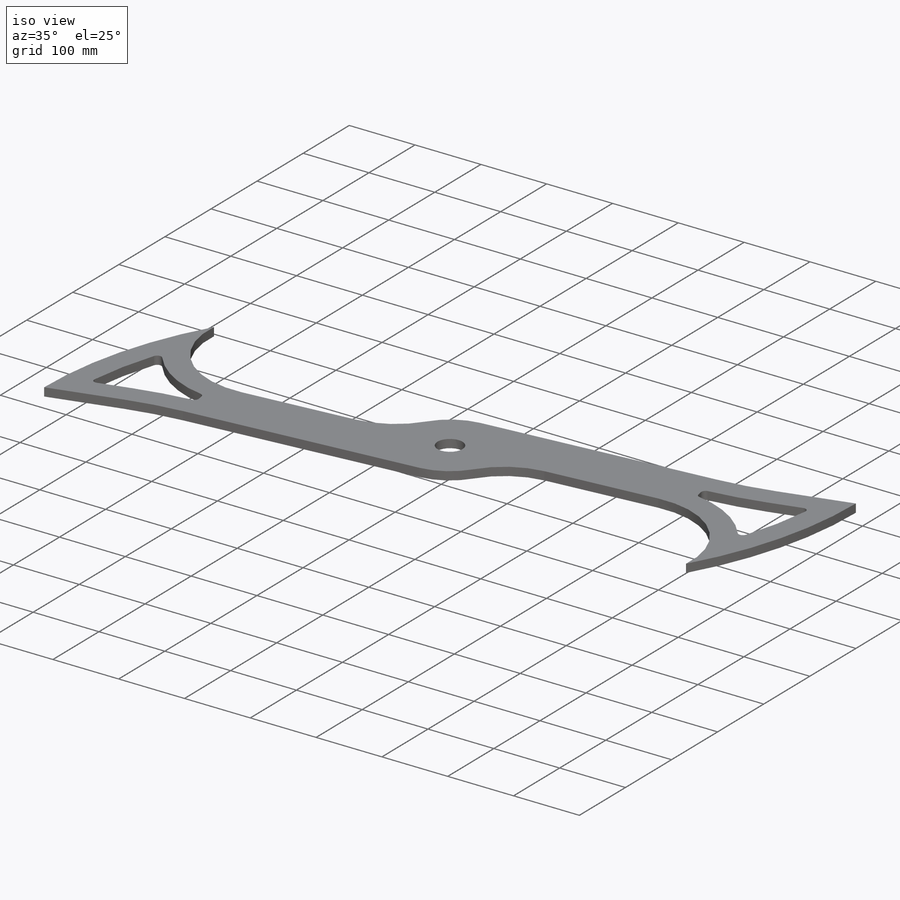
[diagram: iso view]
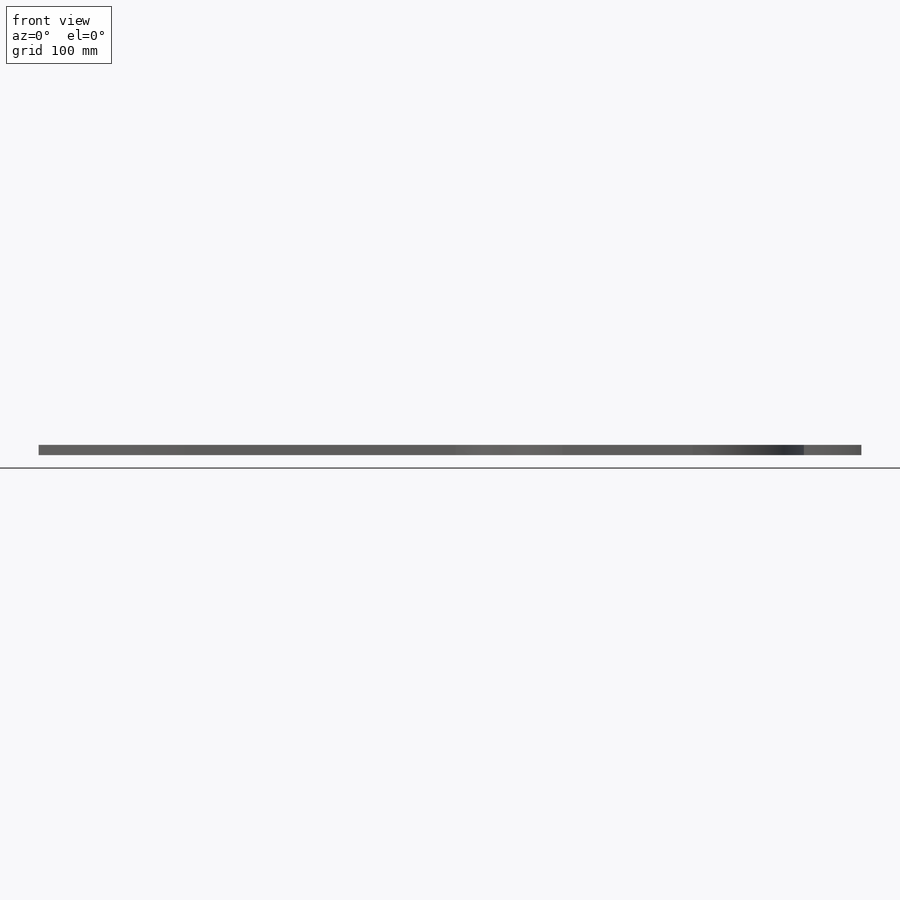
[diagram: front view]
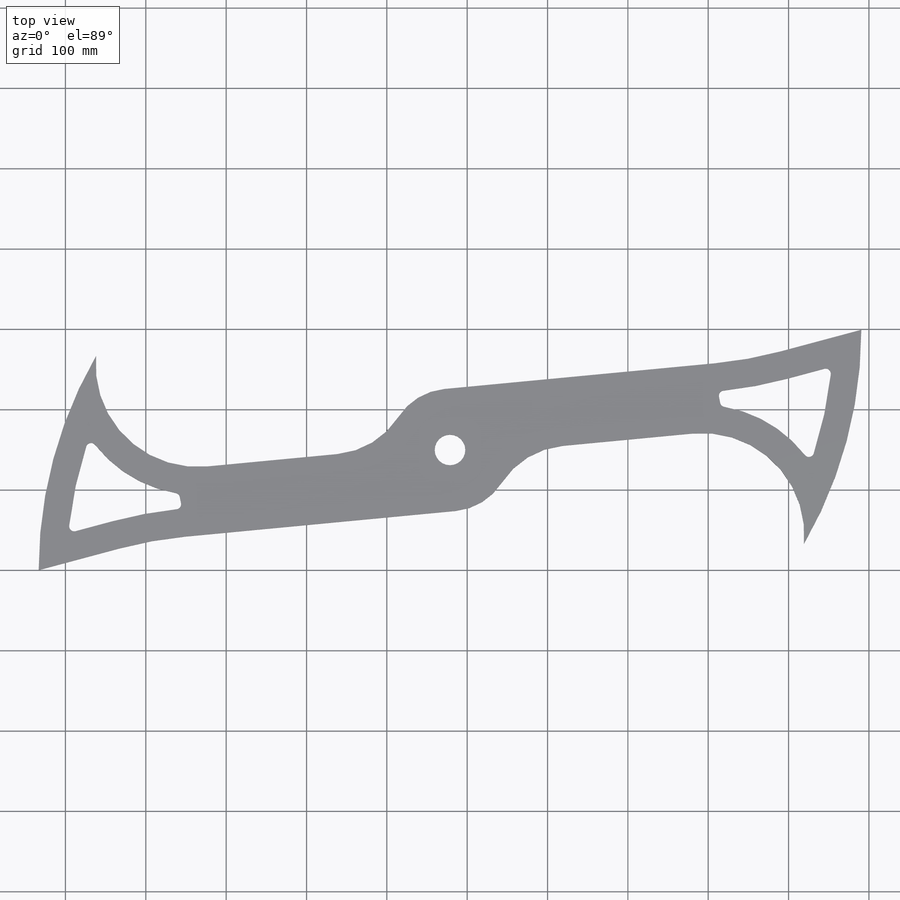
[diagram: top view]
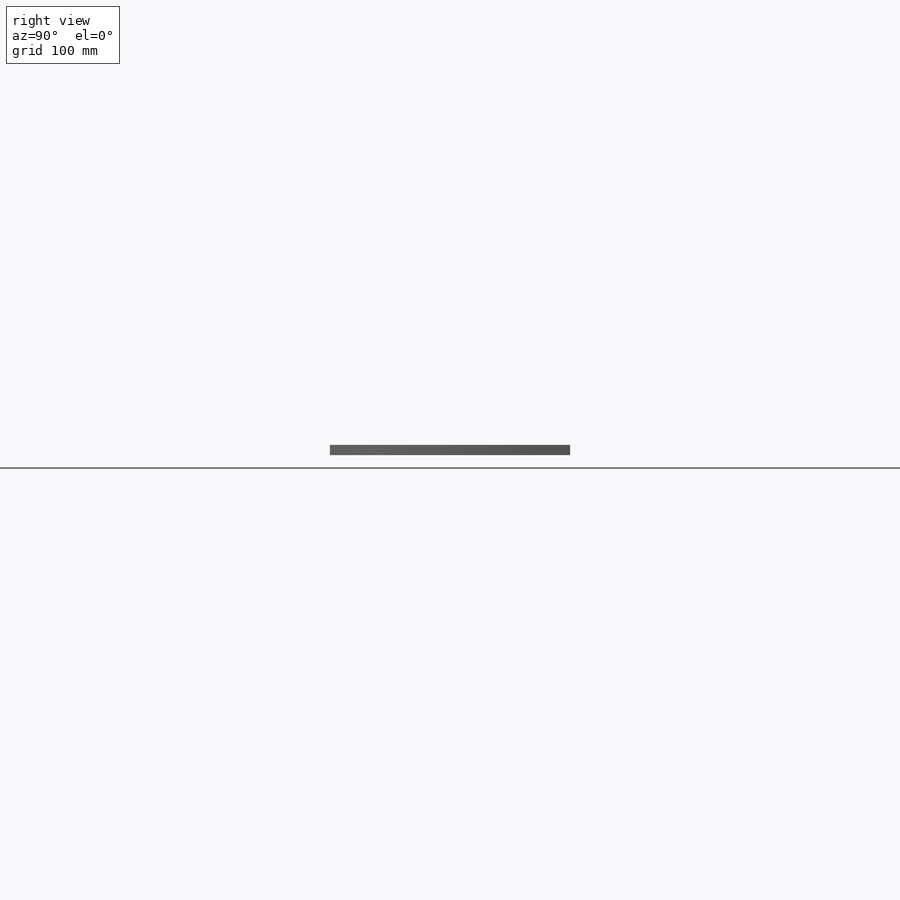
[diagram: right view]
SOLIDWORKS PART (.sldprt)
format: sldprt  version: not decoded by parser v0  size: 290,304 bytes
history: native  units: mm
features: sketch x3, fillet x2, cut_extrude x2, material x1, extrude x1, pattern_circular x1, plane x1, mirror x1 (+13 scaffold rows collapsed)
feature tree (25):
  scaffold x13  (default folders/planes/origin — collapsed)
  material  "Plain Carbon Steel"
  sketch  "Sketch1"  dims[c1.D1=25.4mm c1.D2=1066.8mm c1.D4=101.6mm c1.D5=~589.016161mm c1.D7=127.0mm c1.D8=152.4mm c1.D10=38.1mm c1.D3=~111.723453mm c2.D3=15.0deg c2.D4=~406.904057mm c2.D5=101.6mm c2.D6=533.4mm c2.D8=~216.970728mm c2.D9=533.4mm c3.D6=30.0deg]
  extrude  "Boss-Extrude1"  Depth=12.7mm
  pattern_circular  "CirPattern1"  Count=2 Angle=360deg
  fillet  "Fillet1"  Radius=101.6mm
  sketch  "Sketch2"  dims[D1=2.0]
  cut_extrude  "Cut-Extrude1"  Depth=2.54mm
  plane  "Plane1"
  mirror  "Mirror1"
  sketch  "Sketch3"  dims[D2=~682.645634mm D1=34.925mm]
  cut_extrude  "Cut-Extrude2"  [1 undecoded]
  fillet  "Fillet2"  Radius=6.35mm
decode coverage: 8 of 10 modeling features carry decoded parameters
note: ~ marks probable driven/reference dimensions
note: 1 parameter value undecoded
note: suppression state not decoded; provenance and decode notes live in map.json
